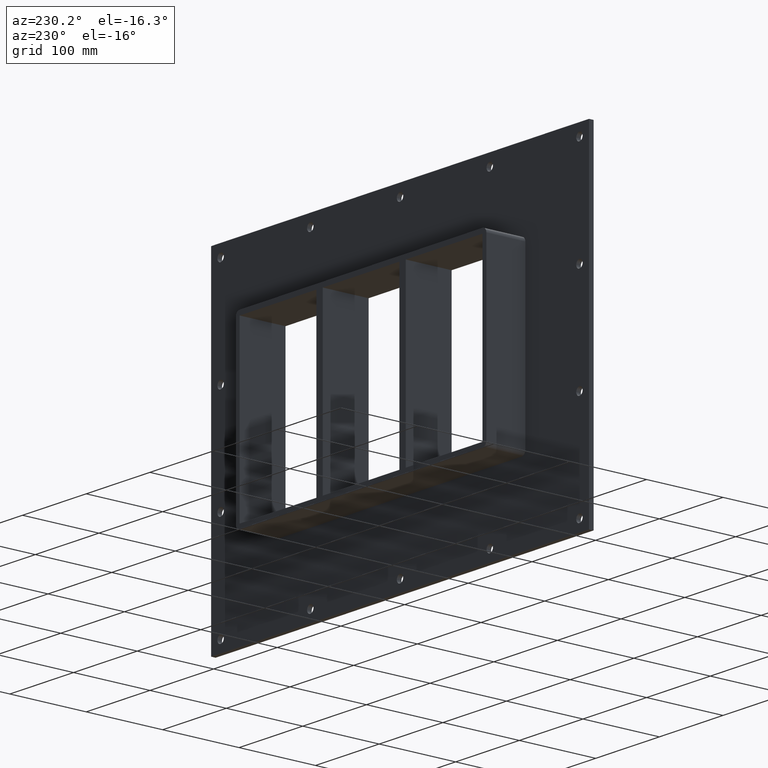
[diagram: clean part render]
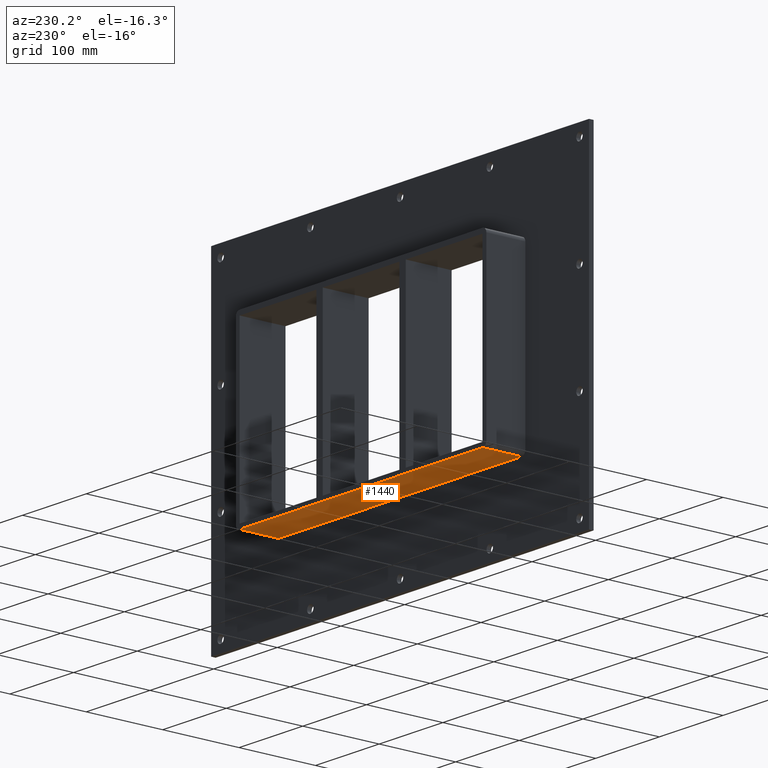
[diagram: same view with one face highlighted and labeled with its STEP entity id]
A machine part, auxiliary view. The second image highlights one B-rep face of the part: STEP entity #1440.
In plain terms, the highlighted planar face has unit normal (0, 0, -1).
Its self-contained STEP definition (entity closure, byte-faithful):
#869=CARTESIAN_POINT('',(-190.75000000000003,6.000000000000001,-115.0));
#870=VERTEX_POINT('',#869);
#880=CARTESIAN_POINT('',(190.75000000000003,6.000000000000001,-115.0));
#881=VERTEX_POINT('',#880);
#882=CARTESIAN_POINT('',(190.75000000000003,6.000000000000001,-115.0));
#883=DIRECTION('',(-1.0,0.0,0.0));
#884=VECTOR('',#883,381.50000000000006);
#885=LINE('',#882,#884);
#886=EDGE_CURVE('',#881,#870,#885,.T.);
#1349=CARTESIAN_POINT('',(190.75000000000003,57.0,-115.0));
#1350=VERTEX_POINT('',#1349);
#1351=CARTESIAN_POINT('',(190.75000000000003,6.000000000000001,-115.0));
#1352=DIRECTION('',(0.0,1.0,0.0));
#1353=VECTOR('',#1352,51.0);
#1354=LINE('',#1351,#1353);
#1355=EDGE_CURVE('',#881,#1350,#1354,.T.);
#1417=CARTESIAN_POINT('',(196.75000000000006,0.0,-115.0));
#1418=DIRECTION('',(0.0,0.0,-1.0));
#1419=DIRECTION('',(-1.0,0.0,0.0));
#1420=AXIS2_PLACEMENT_3D('',#1417,#1418,#1419);
#1421=PLANE('',#1420);
#1422=ORIENTED_EDGE('',*,*,#886,.T.);
#1423=CARTESIAN_POINT('',(-190.75000000000003,57.0,-115.0));
#1424=VERTEX_POINT('',#1423);
#1425=CARTESIAN_POINT('',(-190.75000000000003,57.0,-115.0));
#1426=DIRECTION('',(0.0,-1.0,0.0));
#1427=VECTOR('',#1426,51.0);
#1428=LINE('',#1425,#1427);
#1429=EDGE_CURVE('',#1424,#870,#1428,.T.);
#1430=ORIENTED_EDGE('',*,*,#1429,.F.);
#1431=CARTESIAN_POINT('',(190.75000000000006,57.0,-115.0));
#1432=DIRECTION('',(-1.0,0.0,0.0));
#1433=VECTOR('',#1432,381.50000000000006);
#1434=LINE('',#1431,#1433);
#1435=EDGE_CURVE('',#1350,#1424,#1434,.T.);
#1436=ORIENTED_EDGE('',*,*,#1435,.F.);
#1437=ORIENTED_EDGE('',*,*,#1355,.F.);
#1438=EDGE_LOOP('',(#1422,#1430,#1436,#1437));
#1439=FACE_OUTER_BOUND('',#1438,.T.);
#1440=ADVANCED_FACE('',(#1439),#1421,.T.);